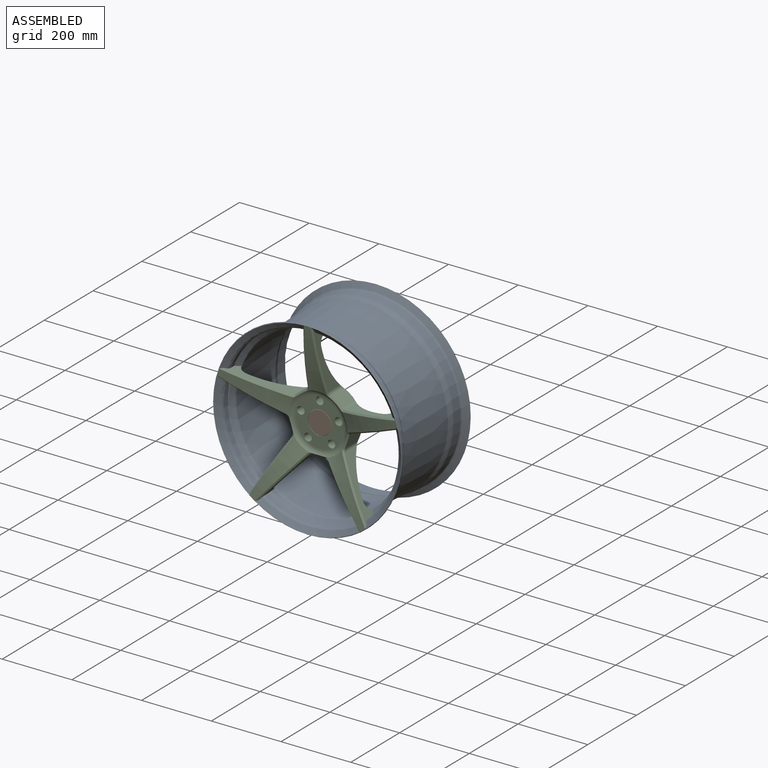
[diagram: assembled view]
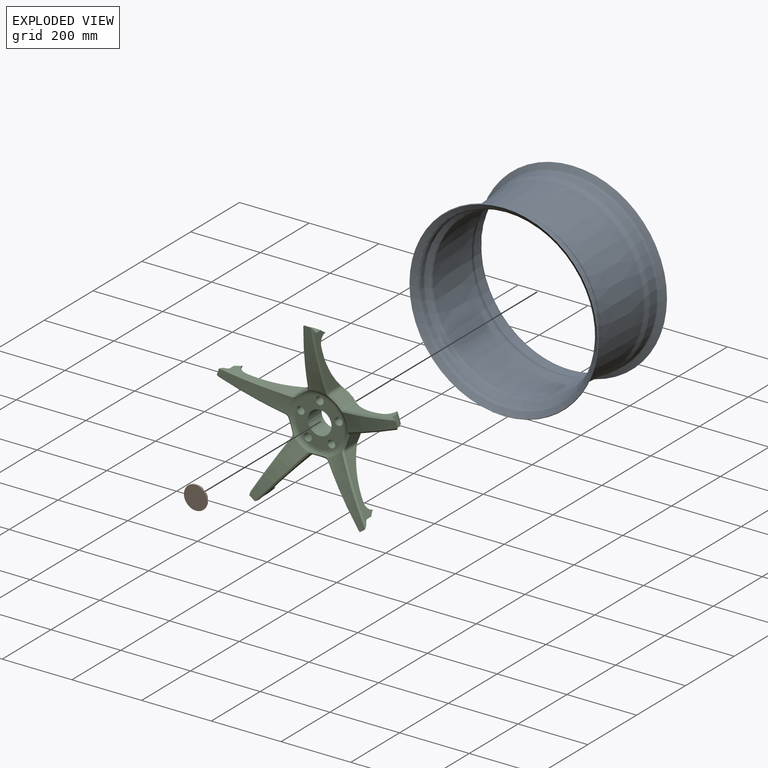
[diagram: exploded view]
GUIDED TOUR — MATED ASSEMBLY (Onshape document 582e255d853d2110a3af2206, AutoMate assembly 582e255d853d2110a3af2206_4683c68422894d4d4302a787_40f1b818431d28b23485c999_default)

This assembly has 3 components, labeled P0..P2 below (a component is one placed occurrence of a part; the same part can appear more than once), held together by 3 mates. A mate is a constraint between two components; its type names the relative motion it leaves free:
  CYLINDRICAL — leaves both rotation about and translation along the listed axis free,
  FASTENED — locks the two components together rigidly (no relative motion).
Axis/direction vectors are unit vectors and 'through' points are millimeter coordinates, both in the assembly's world frame.

MATES
  1. FASTENED "Fastened 2": P1 <-> P2, direction (0.000, -1.000, 0.000) through (7.81, 4.21, 0.63) mm
  2. CYLINDRICAL "Cylindrical 1": P2 <-> P0, axis (0.000, -1.000, 0.000) through (7.81, 32.19, 0.63) mm
  3. FASTENED "Fastened 1": P0 <-> P2, direction (0.000, -1.000, 0.000) through (7.81, -6.79, 0.63) mm

ASSEMBLY ORDER
  1. P2 — the base component [order heuristic]
  2. P1 [order verified]
  3. P0 — core [order heuristic]
(P1 verified with a relaxed clearance tolerance: the source model stores slight part interference there.)
Order-tag legend:
  [order verified] — this step's position reverses a verified removal order: the component was checked to insert without passing through the ones already placed.
  [order heuristic] — the first 2 components form the assembly's core: parts whose collision-free extraction could not be verified, listed in mate-graph order.

Of the 3 components, 1 carries the full construction recipe — the FeatureScript program that regenerates the part's solid from scratch; the rest are supplied as boundary geometry only.
Each toured component is shown spotlighted twice — in the assembled view, then in the exploded view, where a leader line traces a displaced component back to its assembled socket (saturated green if recipe-attached, orange if geometry-only; every other component desaturated gray) — followed by its recipe or geometry summary and the mates that hold it.
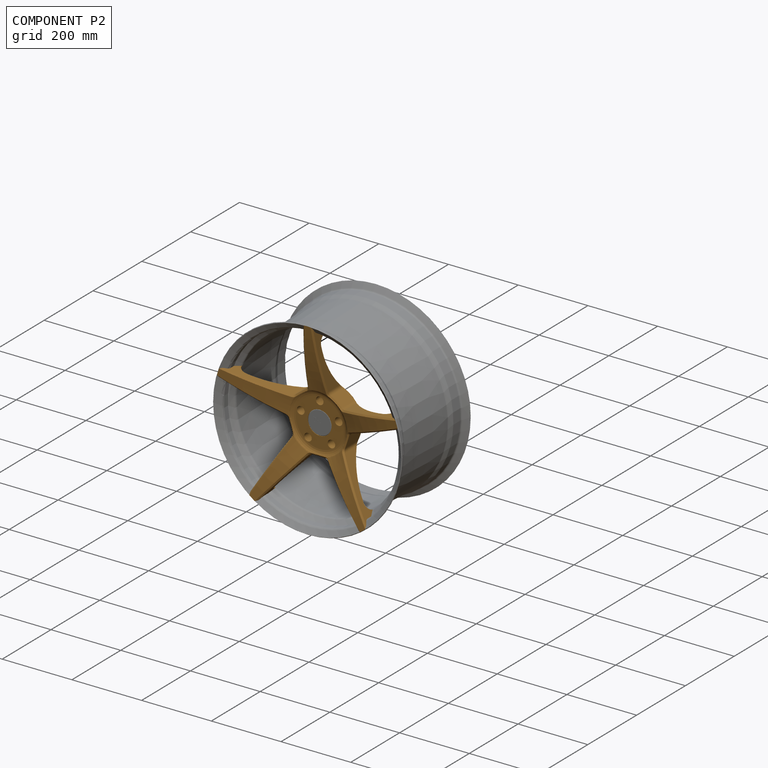
[diagram: component P2 — assembled]
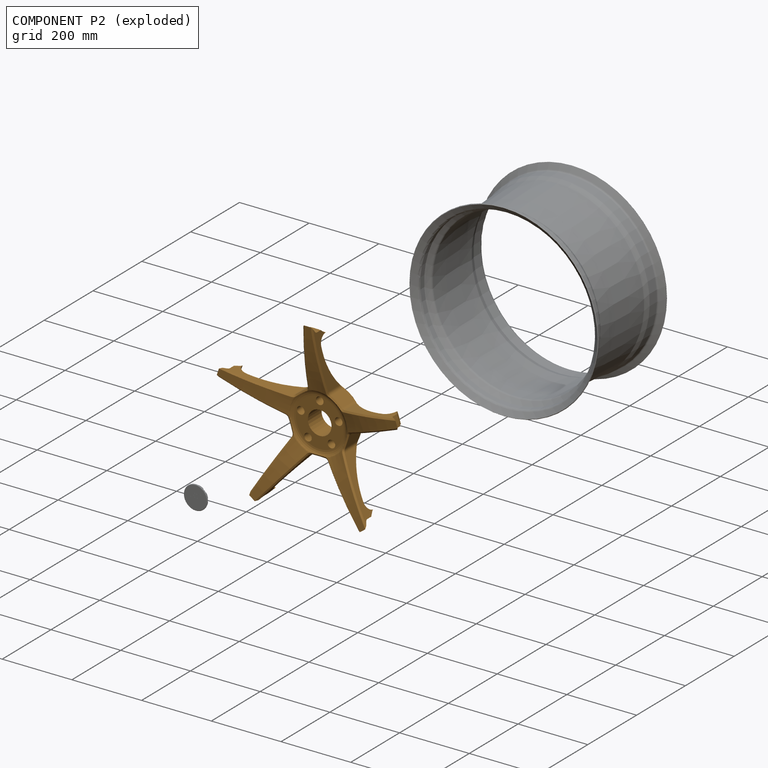
[diagram: component P2 — exploded]
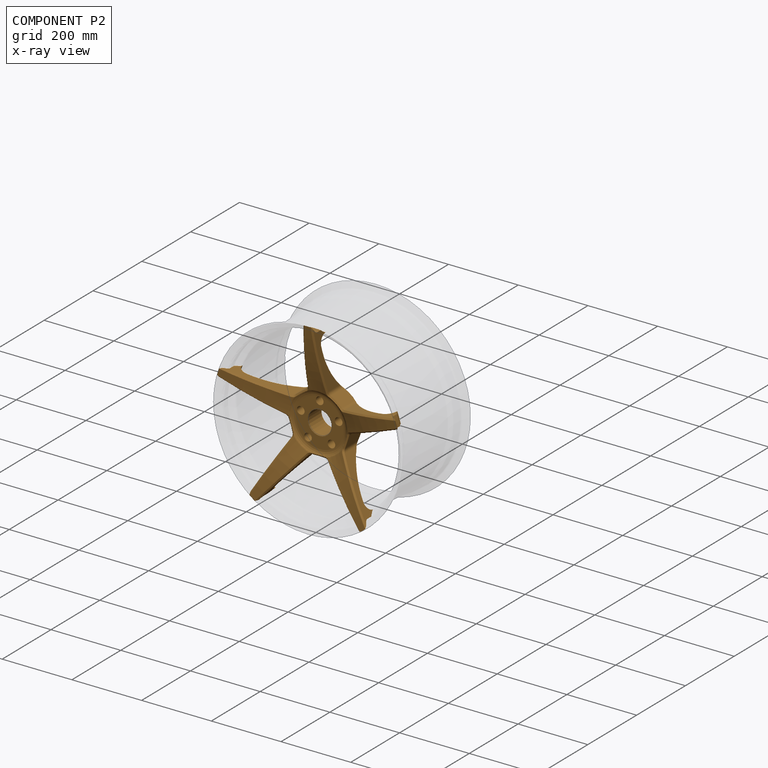
[diagram: component P2 — x-ray view]
COMPONENT P2 — geometry summary (no construction recipe available for this part):
  bounding box: 548.5 x 539.6 x 241.9 mm
  B-rep topology: 1 solid, 115 faces, 606 edges
  volume: 2344272 mm^3 (3% of its bounding box)
  symmetry: mirror-symmetric across its x mid-plane
Held by: FASTENED mate "Fastened 2" to P1; CYLINDRICAL mate "Cylindrical 1" to P0; FASTENED mate "Fastened 1" to P0.
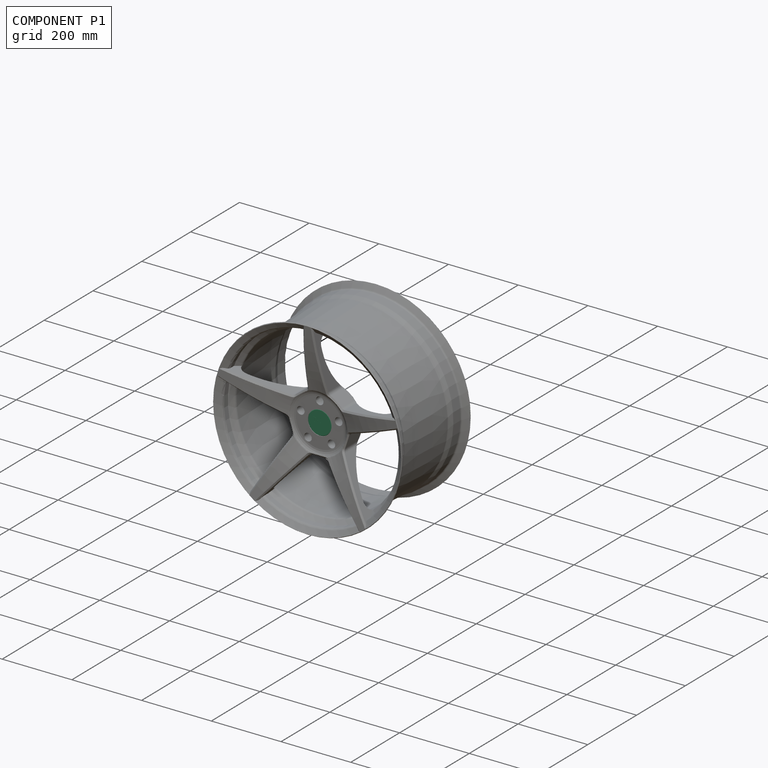
[diagram: component P1 — assembled]
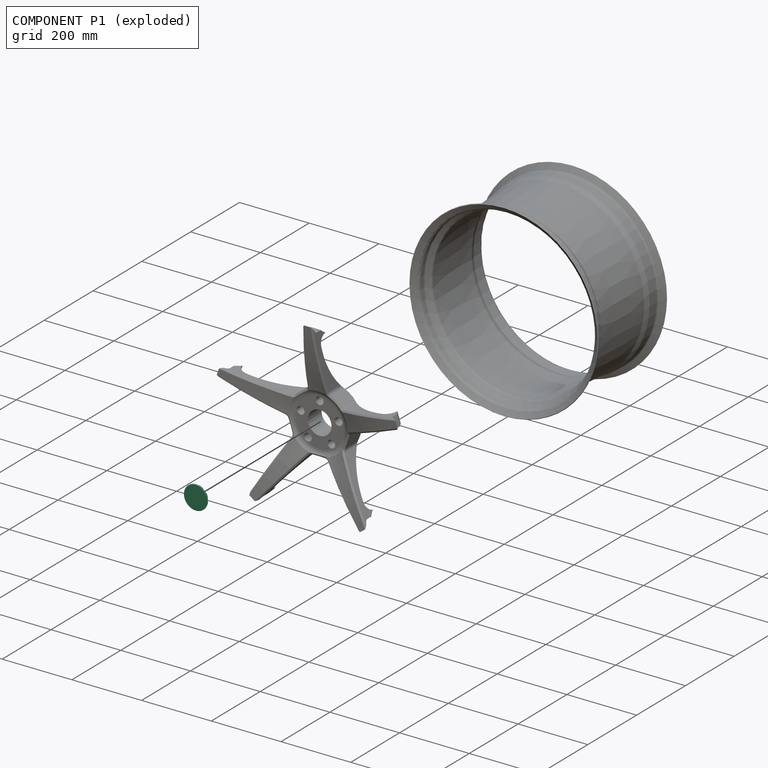
[diagram: component P1 — exploded]
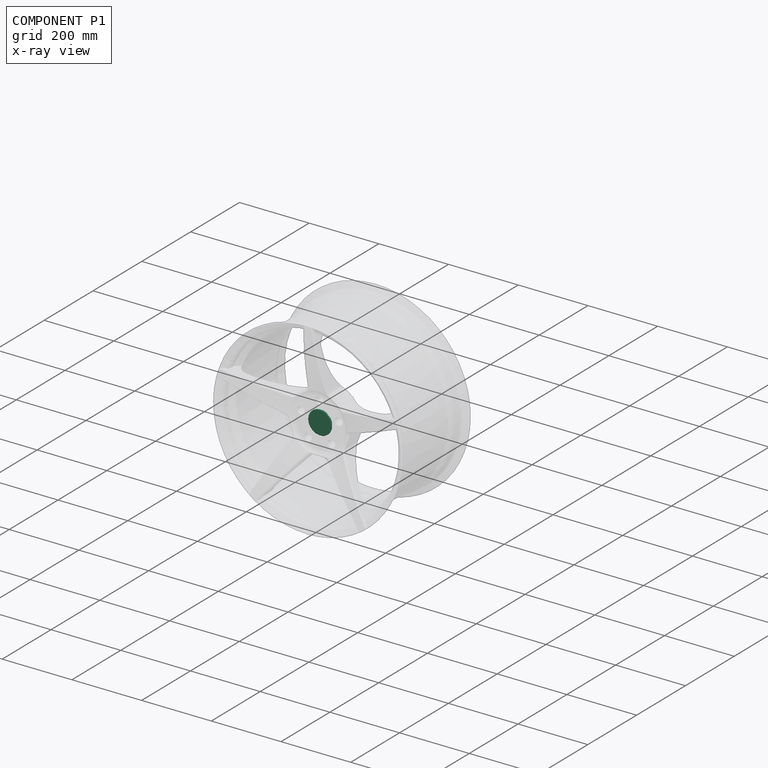
[diagram: component P1 — x-ray view]
COMPONENT P1 — recipe-attached (CADFS 00226631, mesh-verified: the recipe's output STEP matches this component's geometry to below the mesh-comparison resolution (tessellation chordal tolerance ~0.144 mm)).
Held by: FASTENED mate "Fastened 2" to P2.
Construction recipe (FeatureScript — the CAD program that rebuilds this solid; sketch coordinates are in the units given by the * unit suffixes, e.g. mm):

FeatureScript 1511;
import(path : "onshape/std/geometry.fs", version : "1511.0");
import(path : "onshape/std/common.fs", version : "1511.0");
const mm = millimeter;
const VERTEX = EntityType.VERTEX;
const EDGE = EntityType.EDGE;
const FACE = EntityType.FACE;
const BODY = EntityType.BODY;
function v(x, y){return vector(x, y);}
function OD(order){return orderDisambiguation(order);}
function OSD(set){return originalSetDisambiguation(set);}
function TD(topology){return topologyDisambiguation(topology);}
function TDD(query){return trueDependencyDisambiguation(query);}
function sQuery(a, b, c) {return sketchEntityQuery(a, b, c);}

annotation { "Feature Type Name" : "Feature", "Feature Type Description" : "" }
export const myFeature = defineFeature(function(context is Context, id is Id, definition is map)
    precondition{}
    {
        {
            var Q0;
            Q0=qCreatedBy(makeId("Top.planeOp"),FACE);
            var sketch = newSketch(context, id + "F0", { "sketchPlane" : qUnion([Q0])});
            skCircle(sketch, "E0", {"center": v(0, 0) * mm, "radius": 34 * mm});
            skSolve(sketch);
        }
        {
            var Q0;
            Q0=makeQuery(id+"F0.imprint","IMPRINT",FACE,{"disambiguationData":[TD([[makeQuery(id+"F0.imprint","IMPRINT",EDGE,{"derivedFrom":sQuery(id+"F0.wireOp",EDGE,"E0")}),1.0]])]});
            extrude(context, id + "F1", {"entities" : qUnion([Q0]), "depth" : 2.54 * mm});
        }
        {
            var Q0;
            Q0=makeQuery(id+"F1.opExtrude","CAP_EDGE",EDGE,{"disambiguationData":[OSD([sQuery(id+"F0.wireOp",EDGE,"E0")])],"isStart":false});
            chamfer(context, id + "F2", {"entities" : qUnion([Q0]), "width" : 1.27 * mm, "tangentPropagation" : true});
        }
        {
            var Q0;
            Q0=qCreatedBy(makeId("Front.planeOp"),FACE);
            var sketch = newSketch(context, id + "F3", { "sketchPlane" : qUnion([Q0])});
            skLineSegment(sketch, "E1", {"start": v(32.56, 0) * mm, "end": v(32.56, -1.61) * mm});
            skLineSegment(sketch, "E2", {"start": v(32.56, -1.61) * mm, "end": v(33.07, -1.61) * mm});
            skLineSegment(sketch, "E3", {"start": v(33.07, -1.61) * mm, "end": v(33.07, -2.24) * mm});
            skLineSegment(sketch, "E4", {"start": v(33.07, -2.24) * mm, "end": v(32, -3.02) * mm});
            skLineSegment(sketch, "E5", {"start": v(32, -3.02) * mm, "end": v(32, 0) * mm});
            skLineSegment(sketch, "E6", {"start": v(32, 0) * mm, "end": v(32.56, 0) * mm});
            skLineSegment(sketch, "E7", {"start": v(0, 0) * mm, "end": v(0, -19.48) * mm, "construction": true});
            skSolve(sketch);
        }
        {
            var Q0;
            Q0=qSketchRegion(id+"F3",true);
            var Q1;
            Q1=sQuery(id+"F3.wireOp",EDGE,"E7");
            revolve(context, id + "F4", {"operationType" : NewBodyOperationType.ADD, "entities" : qUnion([Q0]), "axis" : qUnion([Q1]), "revolveType" : RevolveType.FULL});
        }
        {
            var Q0;
            Q0=qCreatedBy(makeId("Top.planeOp"),FACE);
            var sketch = newSketch(context, id + "F5", { "sketchPlane" : qUnion([Q0])});
            skLineSegment(sketch, "E8", {"start": v(0, 0) * mm, "end": v(6.04, 34.27) * mm, "construction": true});
            skLineSegment(sketch, "E9", {"start": v(0, 0) * mm, "end": v(-6.04, 34.27) * mm, "construction": true});
            skLineSegment(sketch, "E10", {"start": v(0, 0) * mm, "end": v(-6.04, 34.27) * mm});
            skLineSegment(sketch, "E11", {"start": v(0, 0) * mm, "end": v(6.04, 34.27) * mm});
            skArc(sketch, "E12", {"start": v(6.04, 34.27) * mm, "mid": v(0, 34.8) * mm, "end": v(-6.04, 34.27) * mm});
            skArc(sketch, "E13.1.0", {"start": v(-19.96, 28.5) * mm, "mid": v(-24.6, 24.6) * mm, "end": v(-28.5, 19.96) * mm});
            skLineSegment(sketch, "E13.1.1", {"start": v(0, 0) * mm, "end": v(-19.96, 28.5) * mm});
            skLineSegment(sketch, "E13.1.2", {"start": v(0, 0) * mm, "end": v(-28.5, 19.96) * mm});
            skLineSegment(sketch, "E13.1.3", {"start": v(0, 0) * mm, "end": v(-28.5, 19.96) * mm, "construction": true});
            skLineSegment(sketch, "E13.1.4", {"start": v(0, 0) * mm, "end": v(-19.96, 28.5) * mm, "construction": true});
            skArc(sketch, "E13.2.0", {"start": v(-34.27, 6.04) * mm, "mid": v(-34.8, 0) * mm, "end": v(-34.27, -6.04) * mm});
            skLineSegment(sketch, "E13.2.1", {"start": v(0, 0) * mm, "end": v(-34.27, 6.04) * mm});
            skLineSegment(sketch, "E13.2.2", {"start": v(0, 0) * mm, "end": v(-34.27, -6.04) * mm});
            skLineSegment(sketch, "E13.2.3", {"start": v(0, 0) * mm, "end": v(-34.27, -6.04) * mm, "construction": true});
            skLineSegment(sketch, "E13.2.4", {"start": v(0, 0) * mm, "end": v(-34.27, 6.04) * mm, "construction": true});
            skArc(sketch, "E13.3.0", {"start": v(-28.5, -19.96) * mm, "mid": v(-24.6, -24.6) * mm, "end": v(-19.96, -28.5) * mm});
            skLineSegment(sketch, "E13.3.1", {"start": v(0, 0) * mm, "end": v(-28.5, -19.96) * mm});
            skLineSegment(sketch, "E13.3.2", {"start": v(0, 0) * mm, "end": v(-19.96, -28.5) * mm});
            skLineSegment(sketch, "E13.3.3", {"start": v(0, 0) * mm, "end": v(-19.96, -28.5) * mm, "construction": true});
            skLineSegment(sketch, "E13.3.4", {"start": v(0, 0) * mm, "end": v(-28.5, -19.96) * mm, "construction": true});
            skArc(sketch, "E13.4.0", {"start": v(-6.04, -34.27) * mm, "mid": v(0, -34.8) * mm, "end": v(6.04, -34.27) * mm});
            skLineSegment(sketch, "E13.4.1", {"start": v(0, 0) * mm, "end": v(-6.04, -34.27) * mm});
            skLineSegment(sketch, "E13.4.2", {"start": v(0, 0) * mm, "end": v(6.04, -34.27) * mm});
            skLineSegment(sketch, "E13.4.3", {"start": v(0, 0) * mm, "end": v(6.04, -34.27) * mm, "construction": true});
            skLineSegment(sketch, "E13.4.4", {"start": v(0, 0) * mm, "end": v(-6.04, -34.27) * mm, "construction": true});
            skArc(sketch, "E13.5.0", {"start": v(19.96, -28.5) * mm, "mid": v(24.6, -24.6) * mm, "end": v(28.5, -19.96) * mm});
            skLineSegment(sketch, "E13.5.1", {"start": v(0, 0) * mm, "end": v(19.96, -28.5) * mm});
            skLineSegment(sketch, "E13.5.2", {"start": v(0, 0) * mm, "end": v(28.5, -19.96) * mm});
            skLineSegment(sketch, "E13.5.3", {"start": v(0, 0) * mm, "end": v(28.5, -19.96) * mm, "construction": true});
            skLineSegment(sketch, "E13.5.4", {"start": v(0, 0) * mm, "end": v(19.96, -28.5) * mm, "construction": true});
            skArc(sketch, "E13.6.0", {"start": v(34.27, -6.04) * mm, "mid": v(34.8, 0) * mm, "end": v(34.27, 6.04) * mm});
            skLineSegment(sketch, "E13.6.1", {"start": v(0, 0) * mm, "end": v(34.27, -6.04) * mm});
            skLineSegment(sketch, "E13.6.2", {"start": v(0, 0) * mm, "end": v(34.27, 6.04) * mm});
            skLineSegment(sketch, "E13.6.3", {"start": v(0, 0) * mm, "end": v(34.27, 6.04) * mm, "construction": true});
            skLineSegment(sketch, "E13.6.4", {"start": v(0, 0) * mm, "end": v(34.27, -6.04) * mm, "construction": true});
            skArc(sketch, "E13.7.0", {"start": v(28.5, 19.96) * mm, "mid": v(24.6, 24.6) * mm, "end": v(19.96, 28.5) * mm});
            skLineSegment(sketch, "E13.7.1", {"start": v(0, 0) * mm, "end": v(28.5, 19.96) * mm});
            skLineSegment(sketch, "E13.7.2", {"start": v(0, 0) * mm, "end": v(19.96, 28.5) * mm});
            skLineSegment(sketch, "E13.7.3", {"start": v(0, 0) * mm, "end": v(19.96, 28.5) * mm, "construction": true});
            skLineSegment(sketch, "E13.7.4", {"start": v(0, 0) * mm, "end": v(28.5, 19.96) * mm, "construction": true});
            skSolve(sketch);
        }
        {
            var Q0;
            Q0=makeQuery(id+"F5.imprint","IMPRINT",FACE,{"disambiguationData":[TD([[makeQuery(id+"F5.imprint","IMPRINT",EDGE,{"derivedFrom":sQuery(id+"F5.wireOp",EDGE,"E10")}),-1.0]])]});
            var Q1;
            Q1=makeQuery(id+"F5.imprint","IMPRINT",FACE,{"disambiguationData":[TD([[makeQuery(id+"F5.imprint","IMPRINT",EDGE,{"derivedFrom":sQuery(id+"F5.wireOp",EDGE,"E13.1.0")}),1.0]])]});
            var Q2;
            Q2=makeQuery(id+"F5.imprint","IMPRINT",FACE,{"disambiguationData":[TD([[makeQuery(id+"F5.imprint","IMPRINT",EDGE,{"derivedFrom":sQuery(id+"F5.wireOp",EDGE,"E13.2.0")}),1.0]])]});
            var Q3;
            Q3=makeQuery(id+"F5.imprint","IMPRINT",FACE,{"disambiguationData":[TD([[makeQuery(id+"F5.imprint","IMPRINT",EDGE,{"derivedFrom":sQuery(id+"F5.wireOp",EDGE,"E13.3.0")}),1.0]])]});
            var Q4;
            Q4=makeQuery(id+"F5.imprint","IMPRINT",FACE,{"disambiguationData":[TD([[makeQuery(id+"F5.imprint","IMPRINT",EDGE,{"derivedFrom":sQuery(id+"F5.wireOp",EDGE,"E13.4.0")}),1.0]])]});
            var Q5;
            Q5=makeQuery(id+"F5.imprint","IMPRINT",FACE,{"disambiguationData":[TD([[makeQuery(id+"F5.imprint","IMPRINT",EDGE,{"derivedFrom":sQuery(id+"F5.wireOp",EDGE,"E13.5.0")}),1.0]])]});
            var Q6;
            Q6=makeQuery(id+"F5.imprint","IMPRINT",FACE,{"disambiguationData":[TD([[makeQuery(id+"F5.imprint","IMPRINT",EDGE,{"derivedFrom":sQuery(id+"F5.wireOp",EDGE,"E13.6.0")}),1.0]])]});
            var Q7;
            Q7=makeQuery(id+"F5.imprint","IMPRINT",FACE,{"disambiguationData":[TD([[makeQuery(id+"F5.imprint","IMPRINT",EDGE,{"derivedFrom":sQuery(id+"F5.wireOp",EDGE,"E13.7.0")}),1.0]])]});
            extrude(context, id + "F6", {"entities" : qUnion([Q0, Q1, Q2, Q3, Q4, Q5, Q6, Q7]), "operationType" : NewBodyOperationType.REMOVE, "oppositeDirection" : true, "depth" : 25.4 * mm});
        }
        {
            var Q0;
            Q0=makeQuery(id+"F1.opExtrude","CAP_FACE",FACE,{"disambiguationData":[OSD([sQuery(id+"F0.wireOp",EDGE,"E0")])],"isStart":false});
            var sketch = newSketch(context, id + "F7", { "sketchPlane" : qUnion([Q0])});
            skText(sketch, "E14", { "text": "TEST", "fontName": "OpenSans-Regular.ttf"});
            const initialGuessF7  = {"E14": [-0.0178, 0, 1, 0, 0.01164]};
            skSetInitialGuess(sketch, initialGuessF7);
            skSolve(sketch);
        }
        {
            var Q0;
            Q0=qSketchRegion(id+"F7",true);
            extrude(context, id + "F8", {"entities" : qUnion([Q0]), "operationType" : NewBodyOperationType.REMOVE, "oppositeDirection" : true, "depth" : 0.13 * mm});
        }
    });
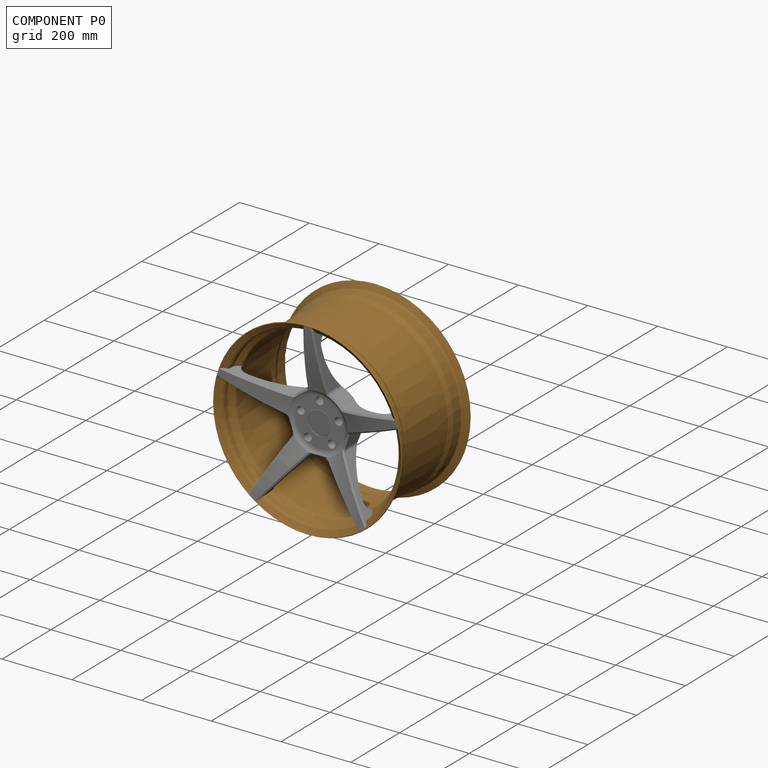
[diagram: component P0 — assembled]
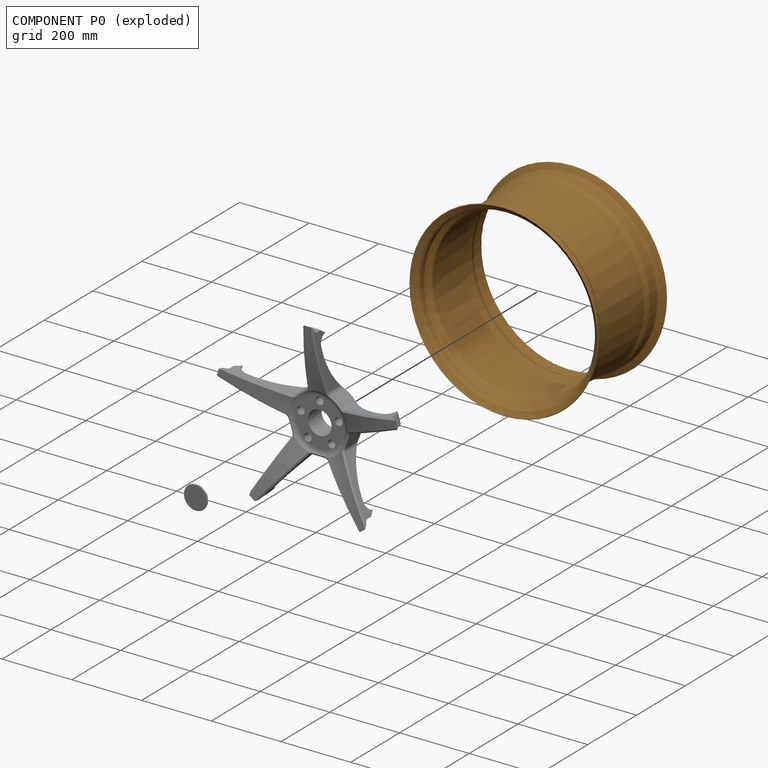
[diagram: component P0 — exploded]
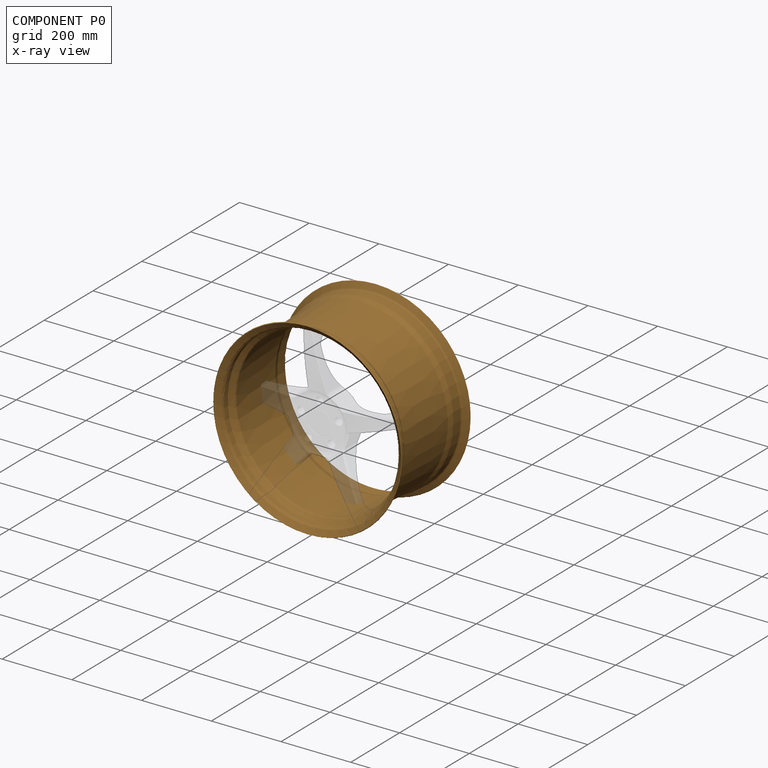
[diagram: component P0 — x-ray view]
COMPONENT P0 — geometry summary (no construction recipe available for this part):
  bounding box: 563.6 x 563.6 x 282.8 mm
  B-rep topology: 1 solid, 26 faces, 104 edges
  volume: 1204933 mm^3 (1% of its bounding box)
  symmetry: revolution-symmetric about the y axis through its bounding-box center; mirror-symmetric across its x mid-plane, z mid-plane
Held by: CYLINDRICAL mate "Cylindrical 1" to P2; FASTENED mate "Fastened 1" to P2.
PROVENANCE & LICENSES
Assembly (occurrences, transforms, mates, per-part STEP geometry): AutoMate dataset, Zenodo record 7776208, CC0.
Construction recipes: CADFS (HuggingFace VladPyatov/CADFS, CC-BY-4.0, layered over the ABC dataset), FeatureScript reconstruction programs keyed by ABC model id.
Join: ABC meta listings map ABC model id -> Onshape documentId; within a shared document, parts are matched by geometric signature (bounding-box dims + volume at 0.1% relative tolerance, exact B-rep face/solid counts).
Verification: 1 of this assembly's 3 components carries a recipe attachment, and every attachment is mesh-verified: the CADFS STEP and the AutoMate member STEP were compared as meshes in their shared local frame (symmetric sampled-point-to-mesh distance); worst across the 1 attachment: below the mesh-comparison resolution (tessellation chordal tolerance ~0.144 mm) on a 96 mm part.
Renders: orthographic iso camera (az 35 / el 25); the floor grid conveys scale (grid pitch printed in each image; no ruler). In the exploded view each component is displaced by its stored offset vector: the offsets alone carry the explosion direction (mate normal/axis signs are not orientation cues and do not encode it), and separation distances are assigned per mate-chain, not proportionally to assembly-order depth.
